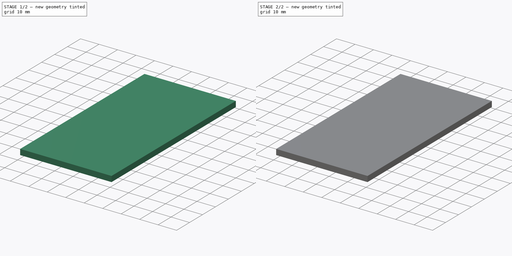
[diagram: build sequence overview — one tinted view per stage of 2, left to right]
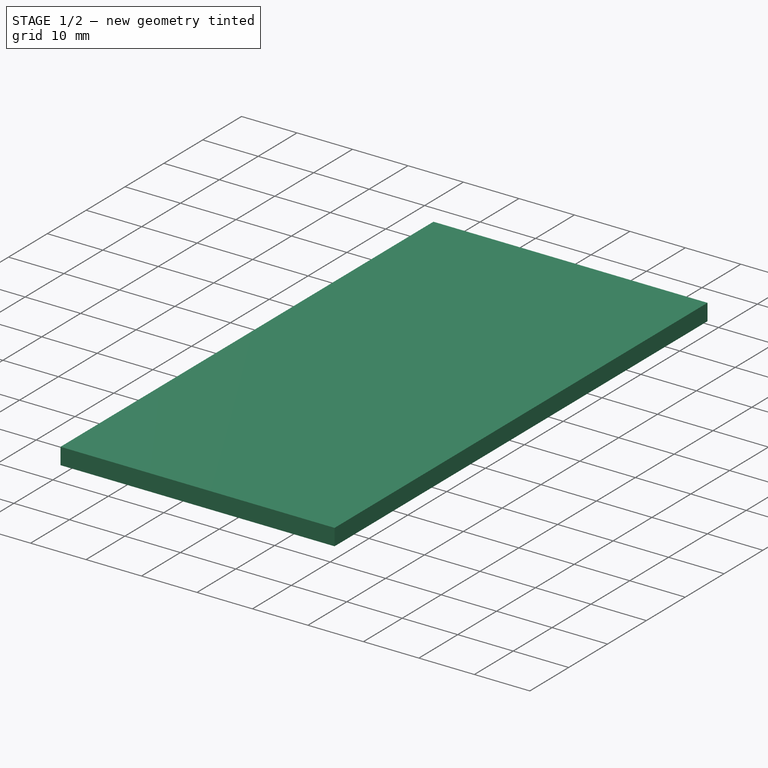
[diagram: stage 1 of 2 — iso view after this stage's code; geometry added in this stage tinted green]
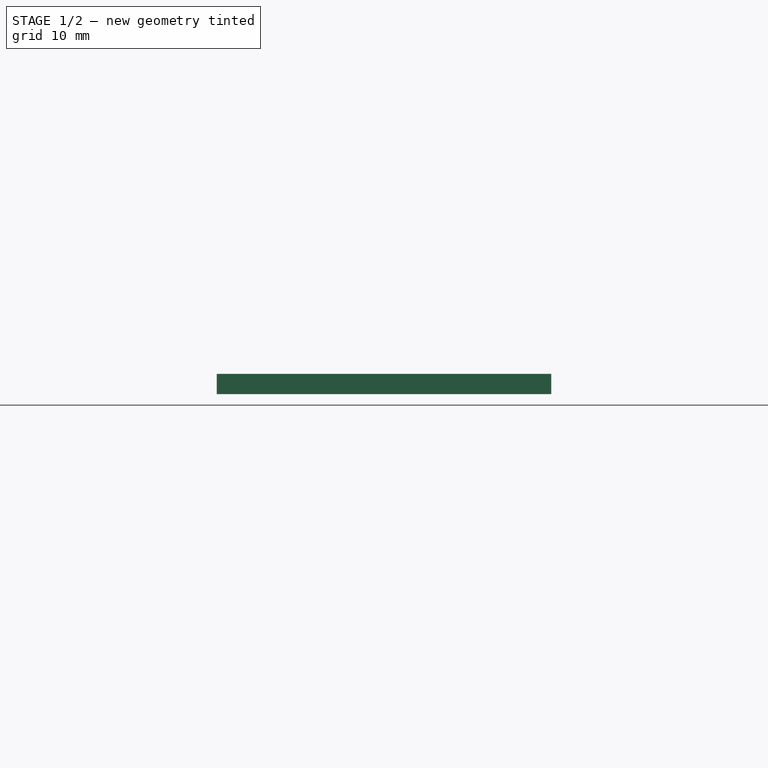
[diagram: stage 1 of 2 — front view after this stage's code; geometry added in this stage tinted green]
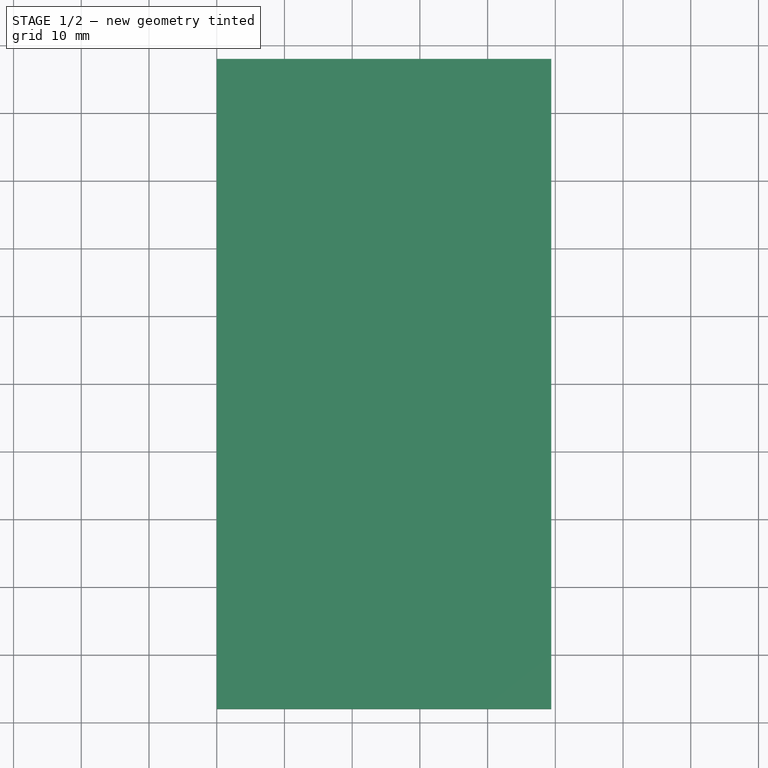
[diagram: stage 1 of 2 — top view after this stage's code; geometry added in this stage tinted green]
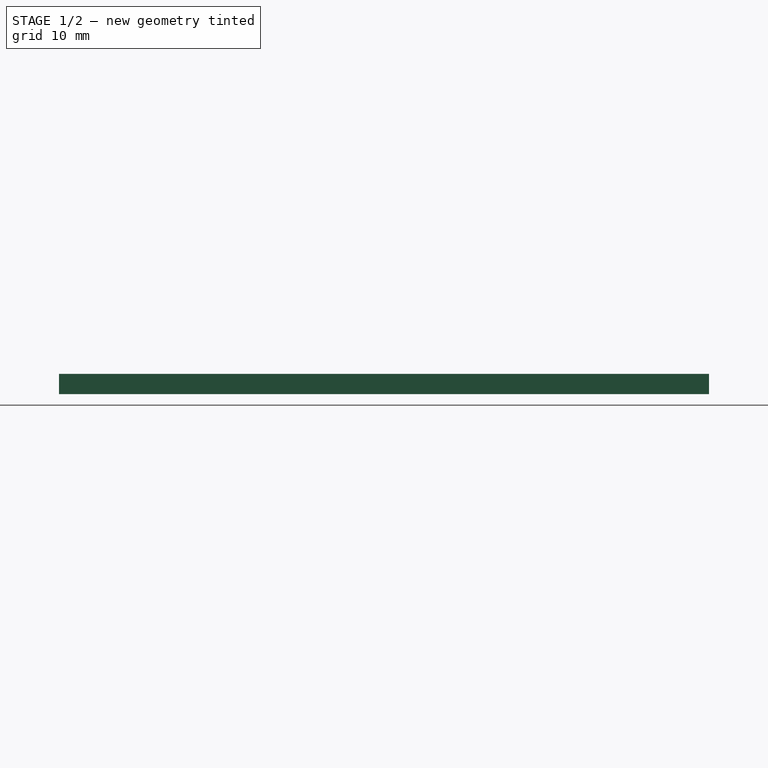
[diagram: stage 1 of 2 — right view after this stage's code; geometry added in this stage tinted green]
FCSTD DOCUMENT  (FreeCAD 0.21R33668 +7 (Git))
Label: speaker-grill-half
License: All rights reserved
LicenseURL: http://en.wikipedia.org/wiki/All_rights_reserved
objects: Sketcher::SketchObject×2, PartDesign::Pad×1, PartDesign::Pocket×1, PartDesign::Body×1, PartDesign::CoordinateSystem×1, App::Part×1
note: 8 computed .brp shape members not serialized (recipe doc carries the construction recipe); baked Part::Feature solids carry a one-line shape summary decoded from their .brp

FEATURE [Sketcher::SketchObject] Sketch
  FullyConstrained = true
  MapMode = 5
  Support = -> [XY_Plane]
  sketch-geometry (7):
    g0: LineSegment StartX=0 StartY=0 StartZ=0 EndX=49.4 EndY=0 EndZ=0
    g1: LineSegment StartX=49.4 StartY=148 StartZ=0 EndX=0 EndY=148 EndZ=0
    g2: LineSegment StartX=0 StartY=148 StartZ=0 EndX=0 EndY=52 EndZ=0
    g3: LineSegment StartX=0 StartY=52 StartZ=0 EndX=0 EndY=0 EndZ=0
    g4: LineSegment StartX=49.4 StartY=0 StartZ=0 EndX=49.4 EndY=52 EndZ=0
    g5: LineSegment StartX=49.4 StartY=52 StartZ=0 EndX=49.4 EndY=148 EndZ=0
    g6: LineSegment StartX=0 StartY=52 StartZ=0 EndX=49.4 EndY=52 EndZ=0
  constraints (19):
    c: Coincident(g0,g4)
    c: Coincident(g5,g1)
    c: Coincident(g1,g2)
    c: Coincident(g3,g0)
    c: Horizontal(g0)
    c: Horizontal(g1)
    c: Coincident(g0,g-1)
    c: DistanceX(g1,g1) = 49.4
    c: DistanceY(g3,g2) = 148
    c: Coincident(g2,g3)
    c: Vertical(g2)
    c: Vertical(g3)
    c: Coincident(g4,g5)
    c: Vertical(g4)
    c: Vertical(g5)
    c: Coincident(g6,g2)
    c: Coincident(g6,g4)
    c: Horizontal(g6)
    c: DistanceY(g4,g4) = 52
FEATURE [PartDesign::Pad] Pad
  Direction = (0,0,1)
  Length = 3
  Length2 = 10
  Profile = -> Sketch
  ReferenceAxis = -> Sketch [N_Axis]
  Type = 0
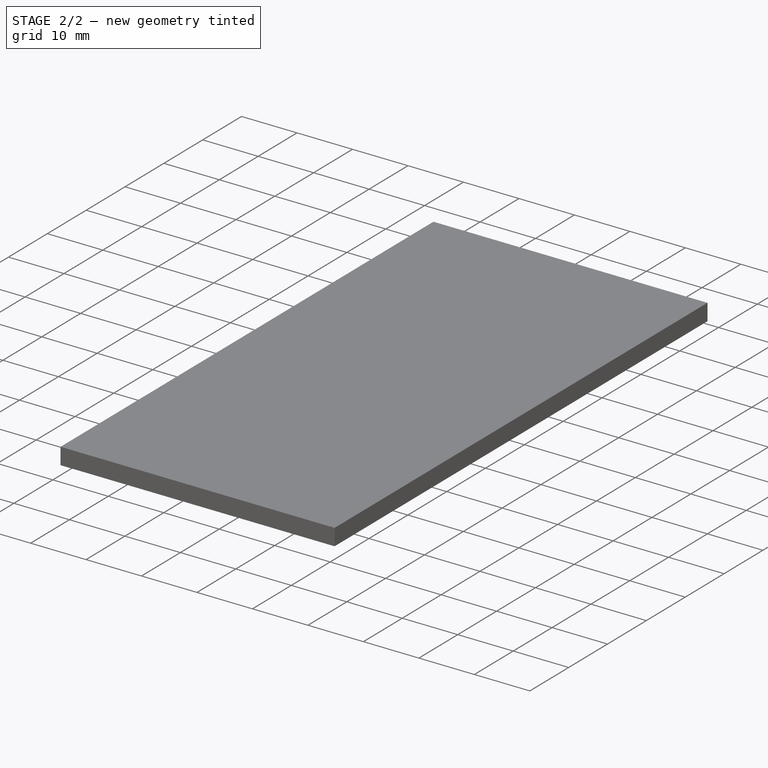
[diagram: stage 2 of 2 — iso view after this stage's code; geometry added in this stage tinted green]
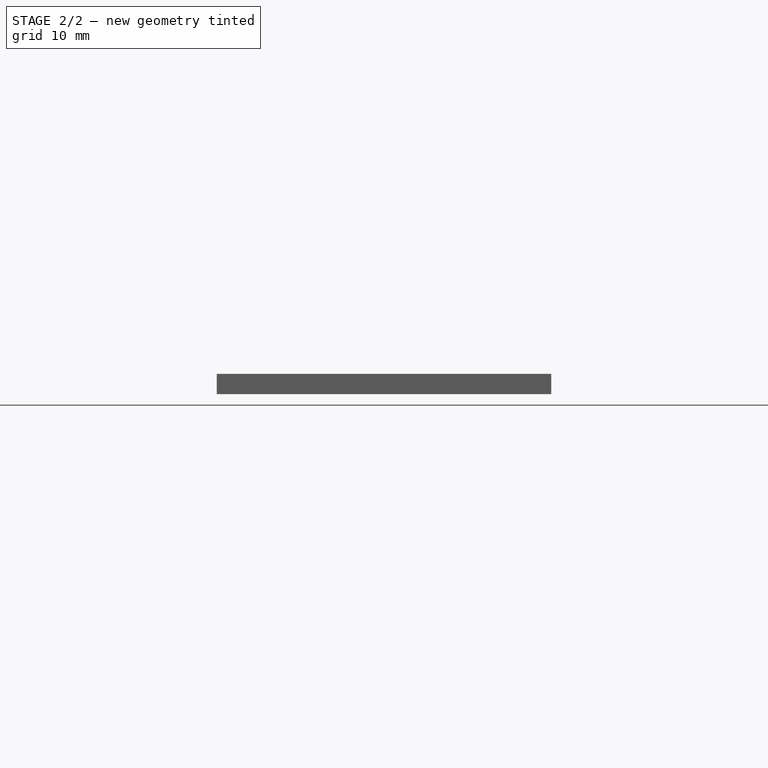
[diagram: stage 2 of 2 — front view after this stage's code; geometry added in this stage tinted green]
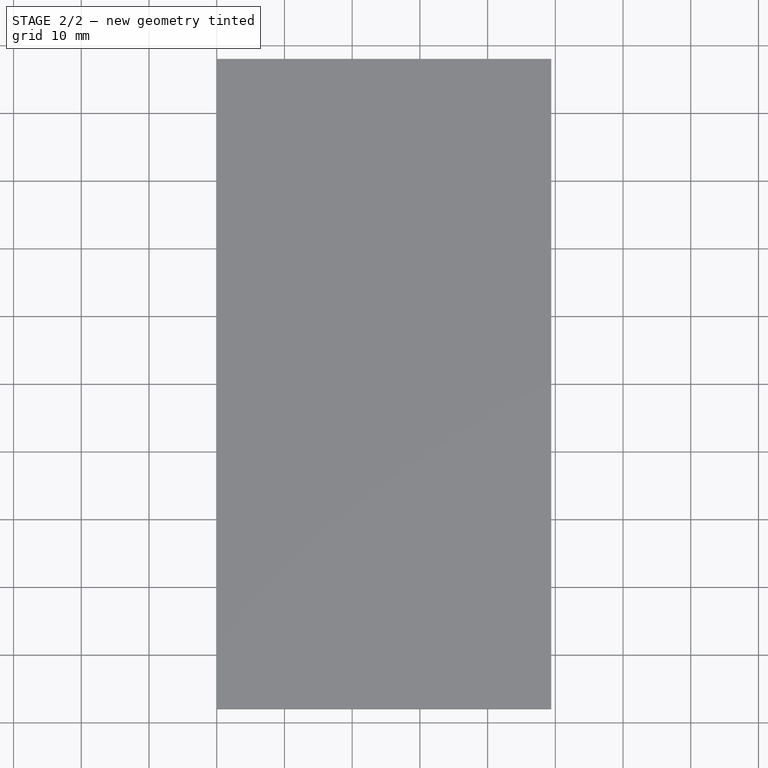
[diagram: stage 2 of 2 — top view after this stage's code; geometry added in this stage tinted green]
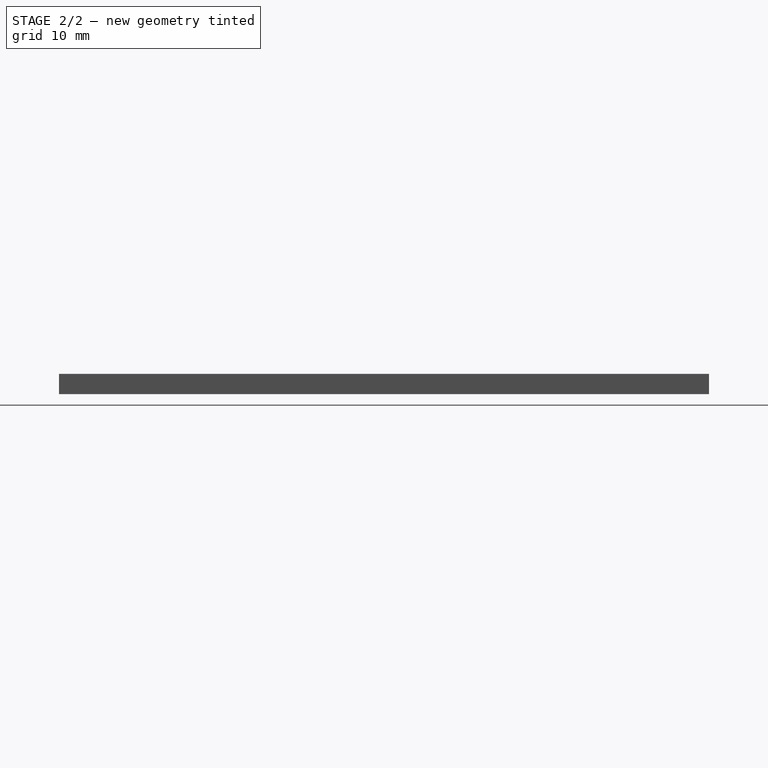
[diagram: stage 2 of 2 — right view after this stage's code; geometry added in this stage tinted green]
FEATURE [Sketcher::SketchObject] Sketch001
  FullyConstrained = false
  MapMode = 5
  Support = -> [XY_Plane]
  sketch-geometry (6):
    g0: Circle CenterX=24.7 CenterY=6 CenterZ=0 NormalX=0 NormalY=0 NormalZ=1 AngleXU=0 Radius=3.1
    g1: Circle CenterX=24.7 CenterY=142 CenterZ=0 NormalX=0 NormalY=0 NormalZ=1 AngleXU=0 Radius=3.1
    g2: LineSegment StartX=24.7 StartY=142 StartZ=0 EndX=24.7 EndY=6 EndZ=0
    g3: LineSegment StartX=6 StartY=58 StartZ=0 EndX=43.4 EndY=58 EndZ=0
    g4: Circle CenterX=6 CenterY=58 CenterZ=0 NormalX=0 NormalY=0 NormalZ=1 AngleXU=0 Radius=2.67447
    g5: Circle CenterX=43.4 CenterY=58 CenterZ=0 NormalX=0 NormalY=0 NormalZ=1 AngleXU=0 Radius=2.05458
  constraints (13):
    c: Coincident(g2,g1)
    c: Coincident(g2,g0)
    c: Vertical(g2)
    c: Equal(g0,g1)
    c: Diameter(g0) = 6.2
    c: DistanceY(g0) = 6
    c: DistanceY(g2,g2) = 136
    c: DistanceX(g0) = 24.7
    c: Coincident(g4,g3)
    c: Coincident(g5,g3)
    c: Symmetric(g5,g4,g2)
    c: DistanceX(g4) = 6
    c: DistanceY(g4) = 58
FEATURE [PartDesign::Pocket] Pocket
  BaseFeature = -> Pad
  Direction = (0,0,-1)
  Length = 2
  Length2 = 5
  Profile = -> Sketch001
  ReferenceAxis = -> Sketch001 [N_Axis]
  Reversed = true
  Type = 0
FEATURE [PartDesign::Body] Body
  Group = -> [Sketch,Pad,Sketch001,Pocket]
  Origin = -> Origin
  Tip = -> Pocket
FEATURE [PartDesign::CoordinateSystem] LCS_0
  AttacherType = Attacher::AttachEngine3D
  MapMode = 2
  Support = -> [X_Axis001]
FEATURE [App::Part] grill_full  label="grill-half"
  Group = -> [LCS_0,Body]
  Origin = -> Origin001
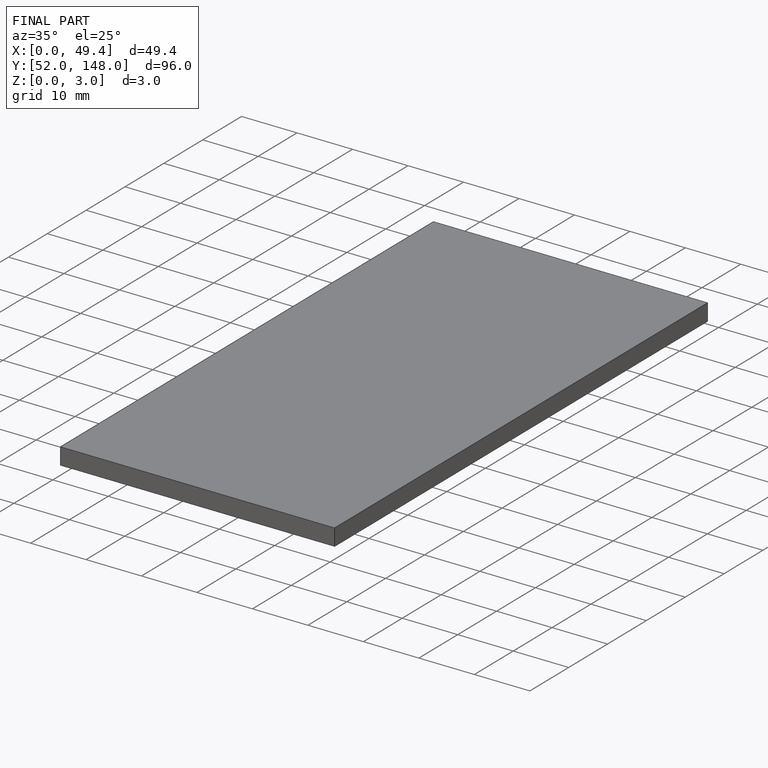
[diagram: finished part — iso view with bounding-box wireframe]
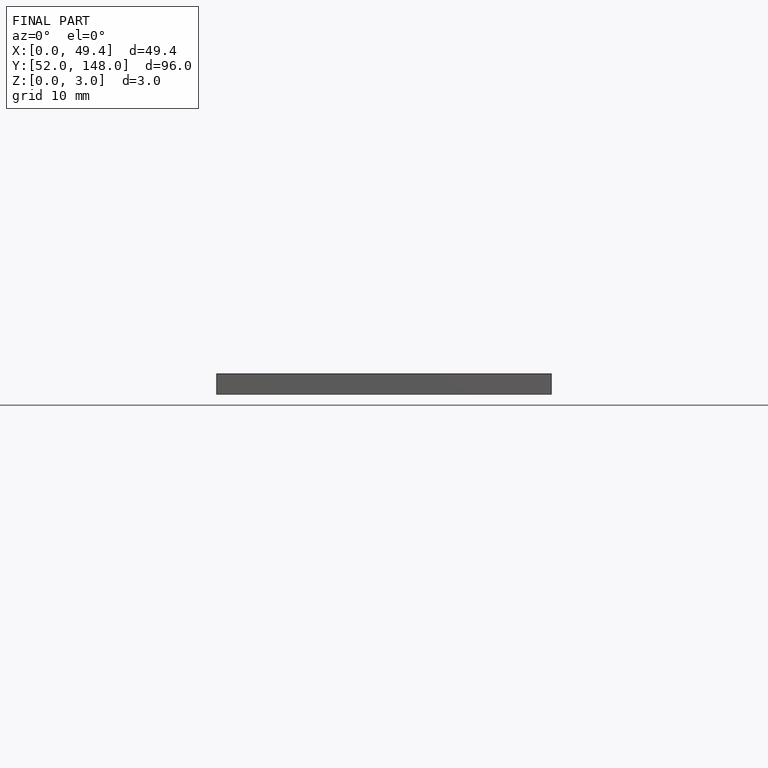
[diagram: finished part — front view with bounding-box wireframe]
